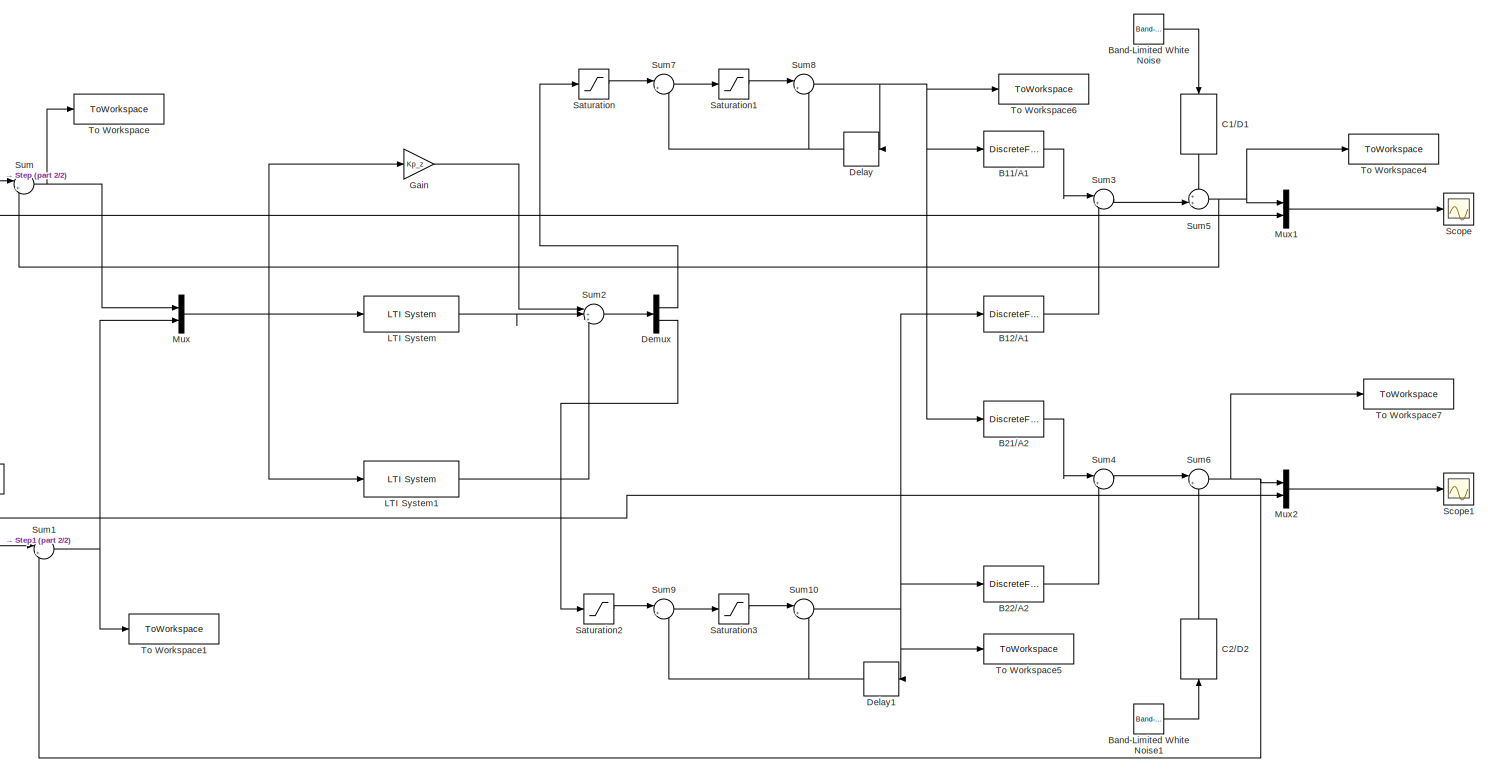
[diagram: root canvas - part 1/2, most of the canvas]
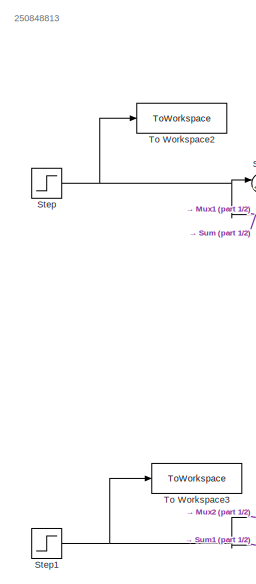
[diagram: root canvas - part 2/2, middle left region]
MODEL slx_be000a7eacb9
KIND model
CONFIG AbsTol = auto
CONFIG EnableMultiTasking = off
CONFIG FixedStep = auto
CONFIG MaxStep = auto
CONFIG MinStep = auto
CONFIG RelTol = 1e-3
CONFIG SampleTimeConstraint = Unconstrained
CONFIG SolverName = VariableStepAuto
CONFIG StartTime = 0.0
CONFIG StopTime = 100
BLOCK [DiscreteFilter] B11//A1
  Denominator = A1
  InputPortMap = u0
  Numerator = B11
  Ports = [1, 1]
BLOCK [DiscreteFilter] B12//A1
  Denominator = A1
  InputPortMap = u0
  Numerator = B12
  Ports = [1, 1]
BLOCK [DiscreteFilter] B21//A2
  Denominator = A2
  InputPortMap = u0
  Numerator = B21
  Ports = [1, 1]
BLOCK [DiscreteFilter] B22//A2
  Denominator = A2
  InputPortMap = u0
  Numerator = B22
  Ports = [1, 1]
BLOCK [Reference] Band-Limited White Noise  REF=simulink/Sources/Band-Limited
White Noise
  Ports = [0, 1]
  SourceBlock = simulink/Sources/Band-Limited\nWhite Noise
  SourceProductBaseCode = SL
  SourceType = Band-Limited White Noise.
BLOCK [Reference] Band-Limited White Noise1  REF=simulink/Sources/Band-Limited
White Noise
  Ports = [0, 1]
  SourceBlock = simulink/Sources/Band-Limited\nWhite Noise
  SourceProductBaseCode = SL
  SourceType = Band-Limited White Noise.
BLOCK [DiscreteFilter] C1//D1
  Denominator = D1
  InputPortMap = u0
  NameLocation = left
  Numerator = C1
  Ports = [1, 1]
BLOCK [DiscreteFilter] C2//D2
  Denominator = D2
  InputPortMap = u0
  NameLocation = right
  Numerator = C2
  Ports = [1, 1]
BLOCK [Delay] Delay
  DelayLength = 1
  InputPortMap = u0
  NameLocation = top
  Ports = [1, 1]
BLOCK [Delay] Delay1
  DelayLength = 1
  InputPortMap = u0
  NameLocation = top
  Ports = [1, 1]
BLOCK [Demux] Demux
  Outputs = 2
  Ports = [1, 2]
BLOCK [Gain] Gain
  Gain = Kp_z
  Multiplication = Matrix(K*u)
BLOCK [Reference] LTI System  REF=cstblocks/LTI System
  Ports = [1, 1]
  SourceBlock = cstblocks/LTI System
  SourceProductBaseCode = CT
  SourceType = LTI Block
BLOCK [Reference] LTI System1  REF=cstblocks/LTI System
  Ports = [1, 1]
  SourceBlock = cstblocks/LTI System
  SourceProductBaseCode = CT
  SourceType = LTI Block
BLOCK [Mux] Mux
  DisplayOption = bar
  Inputs = 2
  Ports = [2, 1]
BLOCK [Mux] Mux1
  DisplayOption = bar
  Inputs = 2
  Ports = [2, 1]
BLOCK [Mux] Mux2
  DisplayOption = bar
  Inputs = 2
  Ports = [2, 1]
BLOCK [Saturate] Saturation
  LowerLimit = 2
  UpperLimit = 10
BLOCK [Saturate] Saturation1
  LowerLimit = -3
  UpperLimit = 3
BLOCK [Saturate] Saturation2
  LowerLimit = 2
  UpperLimit = 10
BLOCK [Saturate] Saturation3
  LowerLimit = -3
  UpperLimit = 3
BLOCK [Scope] Scope
  Floating = off
  NumInputPorts = 1
  Ports = [1]
  ScopeSpecificationString = Simulink.scopes.TimeScopeBlockCfg('CurrentConfiguration', extmgr.ConfigurationSet(extmgr.Configuration('Core','General UI',true),extmgr.Configuration('Core','Source UI',true),extmgr.Configuration('Sources','WiredSimulink',true),extmgr.Configuration('Visuals','Time Domain',true,'SerializedDisplays',{struct('MinYLimReal','-1123974910.62614','MaxYLimReal','948954908.78787','YLabelReal','','MinYLimMag...<+1399ch>
BLOCK [Scope] Scope1
  Floating = off
  NumInputPorts = 1
  Ports = [1]
  ScopeSpecificationString = Simulink.scopes.TimeScopeBlockCfg('CurrentConfiguration', extmgr.ConfigurationSet(extmgr.Configuration('Core','General UI',true),extmgr.Configuration('Core','Source UI',true),extmgr.Configuration('Sources','WiredSimulink',true,'DataLoggingVariableName','ScopeData1'),extmgr.Configuration('Visuals','Time Domain',true,'SerializedDisplays',{struct('MinYLimReal','-2948897284.81015','MaxYLimReal','24897...<+1530ch>
BLOCK [Step] Step
  After = 9
  SampleTime = 0
  Time = 0
BLOCK [Step] Step1
  After = 10
  SampleTime = 0
  Time = 0
BLOCK [Sum] Sum
  Inputs = |+-
  Ports = [2, 1]
BLOCK [Sum] Sum1
  Inputs = |+-
  Ports = [2, 1]
BLOCK [Sum] Sum10
  Inputs = |++
  Ports = [2, 1]
BLOCK [Sum] Sum2
  Inputs = |+++
  Ports = [3, 1]
BLOCK [Sum] Sum3
  Inputs = |++
  Ports = [2, 1]
BLOCK [Sum] Sum4
  Inputs = |++
  Ports = [2, 1]
BLOCK [Sum] Sum5
  Inputs = ++|
  Ports = [2, 1]
BLOCK [Sum] Sum6
  Inputs = |++
  Ports = [2, 1]
BLOCK [Sum] Sum7
  Inputs = |+-
  Ports = [2, 1]
BLOCK [Sum] Sum8
  Inputs = |++
  Ports = [2, 1]
BLOCK [Sum] Sum9
  Inputs = |+-
  Ports = [2, 1]
BLOCK [ToWorkspace] To Workspace
  FixptAsFi = on
  MaxDataPoints = inf
  Ports = [1]
  SampleTime = 1
  Save2DSignal = 2-D array (concatenate along first dimension)
  VariableName = eroare1
BLOCK [ToWorkspace] To Workspace1
  FixptAsFi = on
  MaxDataPoints = inf
  Ports = [1]
  SampleTime = 1
  Save2DSignal = 2-D array (concatenate along first dimension)
  VariableName = eroare2
BLOCK [ToWorkspace] To Workspace2
  FixptAsFi = on
  MaxDataPoints = inf
  Ports = [1]
  SampleTime = 1
  Save2DSignal = 2-D array (concatenate along first dimension)
  VariableName = ref1
BLOCK [ToWorkspace] To Workspace3
  FixptAsFi = on
  MaxDataPoints = inf
  Ports = [1]
  SampleTime = 1
  Save2DSignal = 2-D array (concatenate along first dimension)
  VariableName = ref2
BLOCK [ToWorkspace] To Workspace4
  FixptAsFi = on
  MaxDataPoints = inf
  Ports = [1]
  SampleTime = 1
  Save2DSignal = 2-D array (concatenate along first dimension)
  VariableName = y1
BLOCK [ToWorkspace] To Workspace5
  FixptAsFi = on
  MaxDataPoints = inf
  Ports = [1]
  SampleTime = 1
  Save2DSignal = 2-D array (concatenate along first dimension)
  VariableName = u2
BLOCK [ToWorkspace] To Workspace6
  FixptAsFi = on
  MaxDataPoints = inf
  Ports = [1]
  SampleTime = 1
  Save2DSignal = 2-D array (concatenate along first dimension)
  VariableName = u1
BLOCK [ToWorkspace] To Workspace7
  FixptAsFi = on
  MaxDataPoints = inf
  Ports = [1]
  SampleTime = 1
  Save2DSignal = 2-D array (concatenate along first dimension)
  VariableName = y2
ANNOTATION (root): 250848813
LINE B11//A1:1 -> Sum3:1
LINE B12//A1:1 -> Sum3:2
LINE B21//A2:1 -> Sum4:1
LINE B22//A2:1 -> Sum4:2
LINE Band-Limited White Noise1:1 -> C2//D2:1
LINE Band-Limited White Noise:1 -> C1//D1:1
LINE C1//D1:1 -> Sum5:1
LINE C2//D2:1 -> Sum6:2
NET Delay1:1 -> Sum10:2, Sum9:2
NET Delay:1 -> Sum7:2, Sum8:2
LINE Demux:1 -> Saturation:1
LINE Demux:2 -> Saturation2:1
LINE Gain:1 -> Sum2:1
LINE LTI System1:1 -> Sum2:3
LINE LTI System:1 -> Sum2:2
LINE Mux1:1 -> Scope:1
LINE Mux2:1 -> Scope1:1
NET Mux:1 -> Gain:1, LTI System1:1, LTI System:1
LINE Saturation1:1 -> Sum8:1
LINE Saturation2:1 -> Sum9:1
LINE Saturation3:1 -> Sum10:1
LINE Saturation:1 -> Sum7:1
NET Step1:1 -> Mux2:2, Sum1:1, To Workspace3:1
NET Step:1 -> Mux1:2, Sum:1, To Workspace2:1
NET Sum10:1 -> B12//A1:1, B22//A2:1, Delay1:1, To Workspace5:1
NET Sum1:1 -> Mux:2, To Workspace1:1
LINE Sum2:1 -> Demux:1
LINE Sum3:1 -> Sum5:2
LINE Sum4:1 -> Sum6:1
NET Sum5:1 -> Mux1:1, Sum:2, To Workspace4:1
NET Sum6:1 -> Mux2:1, Sum1:2, To Workspace7:1
LINE Sum7:1 -> Saturation1:1
NET Sum8:1 -> B11//A1:1, B21//A2:1, Delay:1, To Workspace6:1
LINE Sum9:1 -> Saturation3:1
NET Sum:1 -> Mux:1, To Workspace:1
note: NET lines group one-source signal fan-out (src -> all destinations, sorted); 1:1 wires keep LINE
